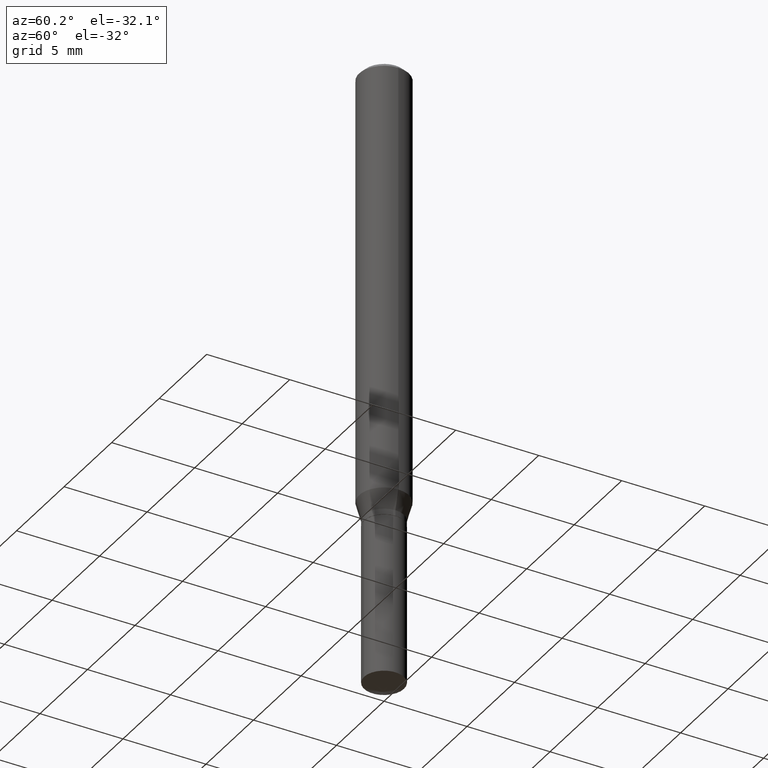
[diagram: clean part render]
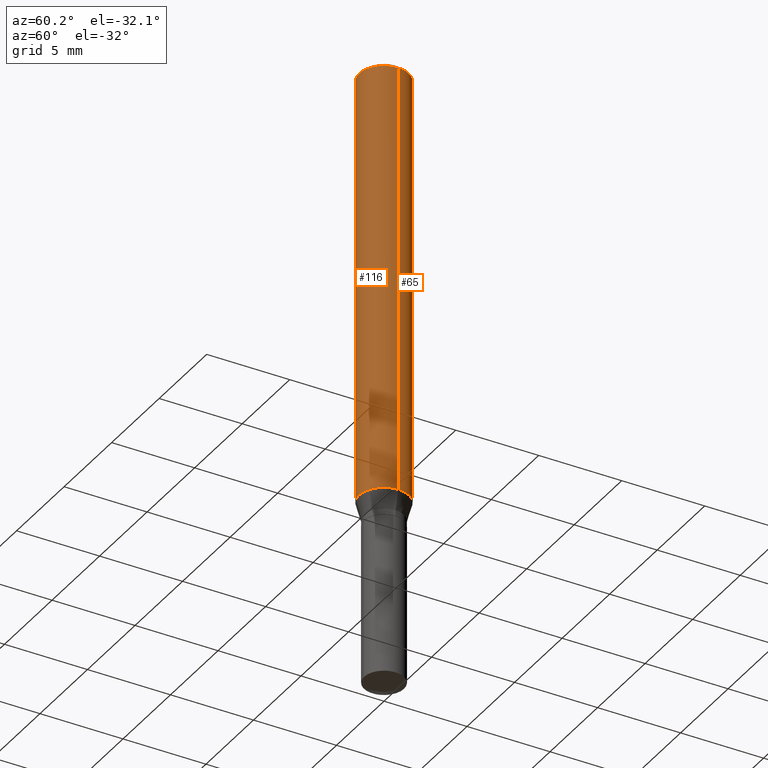
[diagram: same view with one multi-face feature highlighted, each face labeled with its STEP entity id]
A machine part, auxiliary view. The highlighted faces form ONE feature: a constant-radius fillet chain: 2 tangent blend faces with common blend radius 1.4999 mm. The faces share edges in the B-rep.
Their STEP definitions:
[1] entity #65 (Cylinder):
#14 = CARTESIAN_POINT ( 'NONE',  ( -0.05905000000000013016, -3.198513253033061898E-15, -1.036261800470686723 ) ) ;
#19 = DIRECTION ( 'NONE',  ( -2.445468806185136597E-29, 3.491481338843145583E-15, 1.000000000000000000 ) ) ;
#65 = ADVANCED_FACE ( 'NONE', ( #100 ), #180, .T. ) ;
#75 = CIRCLE ( 'NONE', #385, 0.05905000000000013016 ) ;
#100 = FACE_OUTER_BOUND ( 'NONE', #179, .T. ) ;
#125 = EDGE_CURVE ( 'NONE', #378, #214, #142, .T. ) ;
#136 = ORIENTED_EDGE ( 'NONE', *, *, #165, .T. ) ;
#142 = LINE ( 'NONE', #485, #210 ) ;
#144 = EDGE_CURVE ( 'NONE', #416, #440, #473, .T. ) ;
#154 = EDGE_CURVE ( 'NONE', #214, #440, #193, .T. ) ;
#165 = EDGE_CURVE ( 'NONE', #378, #416, #75, .T. ) ;
#173 = ORIENTED_EDGE ( 'NONE', *, *, #125, .F. ) ;
#179 = EDGE_LOOP ( 'NONE', ( #136, #227, #483, #173 ) ) ;
#180 = CYLINDRICAL_SURFACE ( 'NONE', #438, 0.05905000000000006771 ) ;
#193 = CIRCLE ( 'NONE', #339, 0.05904999999999999832 ) ;
#210 = VECTOR ( 'NONE', #367, 39.37007874015748143 ) ;
#214 = VERTEX_POINT ( 'NONE', #422 ) ;
#219 = CARTESIAN_POINT ( 'NONE',  ( -0.05905000000000006771, 4.195754854663396409E-16, -2.904631170795525045E-30 ) ) ;
#227 = ORIENTED_EDGE ( 'NONE', *, *, #144, .T. ) ;
#255 = DIRECTION ( 'NONE',  ( 1.000000000000000000, -6.982962677686266711E-15, 4.876176775795936353E-29 ) ) ;
#263 = DIRECTION ( 'NONE',  ( -2.445468806185136597E-29, 3.491481338843145583E-15, 1.000000000000000000 ) ) ;
#264 = DIRECTION ( 'NONE',  ( 1.000000000000000000, -6.982962677686266711E-15, 0.000000000000000000 ) ) ;
#289 = CARTESIAN_POINT ( 'NONE',  ( -0.05904999999999999832, -1.410086081089229475E-15, -0.01181000000000007565 ) ) ;
#339 = AXIS2_PLACEMENT_3D ( 'NONE', #369, #19, #264 ) ;
#353 = DIRECTION ( 'NONE',  ( -2.445468806185136597E-29, 3.491481338843145583E-15, 1.000000000000000000 ) ) ;
#367 = DIRECTION ( 'NONE',  ( -2.445468806185136877E-29, 3.491481338843145188E-15, 1.000000000000000000 ) ) ;
#369 = CARTESIAN_POINT ( 'NONE',  ( 2.888098660104664642E-31, -4.123439461173780879E-17, -0.01181000000000007565 ) ) ;
#378 = VERTEX_POINT ( 'NONE', #463 ) ;
#385 = AXIS2_PLACEMENT_3D ( 'NONE', #457, #353, #454 ) ;
#401 = VECTOR ( 'NONE', #448, 39.37007874015748143 ) ;
#416 = VERTEX_POINT ( 'NONE', #14 ) ;
#422 = CARTESIAN_POINT ( 'NONE',  ( 0.05904999999999999832, -4.535783407291118600E-16, -0.01181000000000007565 ) ) ;
#438 = AXIS2_PLACEMENT_3D ( 'NONE', #478, #263, #255 ) ;
#440 = VERTEX_POINT ( 'NONE', #289 ) ;
#448 = DIRECTION ( 'NONE',  ( -2.445468806185136877E-29, 3.491481338843145188E-15, 1.000000000000000000 ) ) ;
#454 = DIRECTION ( 'NONE',  ( 1.000000000000000000, -6.982962677686265133E-15, 0.000000000000000000 ) ) ;
#457 = CARTESIAN_POINT ( 'NONE',  ( 2.534145908092310761E-29, -3.618088738499401785E-15, -1.036261800470686723 ) ) ;
#463 = CARTESIAN_POINT ( 'NONE',  ( 0.05905000000000013016, -4.030432684616777494E-15, -1.036261800470686723 ) ) ;
#473 = LINE ( 'NONE', #219, #401 ) ;
#478 = CARTESIAN_POINT ( 'NONE',  ( 0.000000000000000000, 0.000000000000000000, 0.000000000000000000 ) ) ;
#483 = ORIENTED_EDGE ( 'NONE', *, *, #154, .F. ) ;
#485 = CARTESIAN_POINT ( 'NONE',  ( 0.05905000000000006771, -4.123439461173745257E-16, 2.879382386107503723E-30 ) ) ;
[2] entity #116 (Cylinder):
#14 = CARTESIAN_POINT ( 'NONE',  ( -0.05905000000000013016, -3.198513253033061898E-15, -1.036261800470686723 ) ) ;
#37 = DIRECTION ( 'NONE',  ( 1.000000000000000000, -6.982962677686265133E-15, 0.000000000000000000 ) ) ;
#102 = ORIENTED_EDGE ( 'NONE', *, *, #144, .F. ) ;
#103 = DIRECTION ( 'NONE',  ( -2.445468806185136597E-29, 3.491481338843145583E-15, 1.000000000000000000 ) ) ;
#106 = ORIENTED_EDGE ( 'NONE', *, *, #217, .T. ) ;
#116 = ADVANCED_FACE ( 'NONE', ( #403 ), #182, .T. ) ;
#122 = CIRCLE ( 'NONE', #229, 0.05905000000000013016 ) ;
#125 = EDGE_CURVE ( 'NONE', #378, #214, #142, .T. ) ;
#142 = LINE ( 'NONE', #485, #210 ) ;
#144 = EDGE_CURVE ( 'NONE', #416, #440, #473, .T. ) ;
#146 = CARTESIAN_POINT ( 'NONE',  ( 0.000000000000000000, 0.000000000000000000, 0.000000000000000000 ) ) ;
#152 = CIRCLE ( 'NONE', #221, 0.05904999999999999832 ) ;
#156 = CARTESIAN_POINT ( 'NONE',  ( 2.534145908092310761E-29, -3.618088738499401785E-15, -1.036261800470686723 ) ) ;
#182 = CYLINDRICAL_SURFACE ( 'NONE', #261, 0.05905000000000006771 ) ;
#210 = VECTOR ( 'NONE', #367, 39.37007874015748143 ) ;
#214 = VERTEX_POINT ( 'NONE', #422 ) ;
#217 = EDGE_CURVE ( 'NONE', #416, #378, #122, .T. ) ;
#219 = CARTESIAN_POINT ( 'NONE',  ( -0.05905000000000006771, 4.195754854663396409E-16, -2.904631170795525045E-30 ) ) ;
#221 = AXIS2_PLACEMENT_3D ( 'NONE', #396, #398, #322 ) ;
#229 = AXIS2_PLACEMENT_3D ( 'NONE', #156, #103, #37 ) ;
#261 = AXIS2_PLACEMENT_3D ( 'NONE', #146, #338, #480 ) ;
#272 = EDGE_LOOP ( 'NONE', ( #102, #106, #374, #294 ) ) ;
#289 = CARTESIAN_POINT ( 'NONE',  ( -0.05904999999999999832, -1.410086081089229475E-15, -0.01181000000000007565 ) ) ;
#290 = EDGE_CURVE ( 'NONE', #440, #214, #152, .T. ) ;
#294 = ORIENTED_EDGE ( 'NONE', *, *, #290, .F. ) ;
#322 = DIRECTION ( 'NONE',  ( 1.000000000000000000, -6.982962677686266711E-15, 0.000000000000000000 ) ) ;
#338 = DIRECTION ( 'NONE',  ( -2.445468806185136597E-29, 3.491481338843145583E-15, 1.000000000000000000 ) ) ;
#367 = DIRECTION ( 'NONE',  ( -2.445468806185136877E-29, 3.491481338843145188E-15, 1.000000000000000000 ) ) ;
#374 = ORIENTED_EDGE ( 'NONE', *, *, #125, .T. ) ;
#378 = VERTEX_POINT ( 'NONE', #463 ) ;
#396 = CARTESIAN_POINT ( 'NONE',  ( 2.888098660104664642E-31, -4.123439461173780879E-17, -0.01181000000000007565 ) ) ;
#398 = DIRECTION ( 'NONE',  ( -2.445468806185136597E-29, 3.491481338843145583E-15, 1.000000000000000000 ) ) ;
#401 = VECTOR ( 'NONE', #448, 39.37007874015748143 ) ;
#403 = FACE_OUTER_BOUND ( 'NONE', #272, .T. ) ;
#416 = VERTEX_POINT ( 'NONE', #14 ) ;
#422 = CARTESIAN_POINT ( 'NONE',  ( 0.05904999999999999832, -4.535783407291118600E-16, -0.01181000000000007565 ) ) ;
#440 = VERTEX_POINT ( 'NONE', #289 ) ;
#448 = DIRECTION ( 'NONE',  ( -2.445468806185136877E-29, 3.491481338843145188E-15, 1.000000000000000000 ) ) ;
#463 = CARTESIAN_POINT ( 'NONE',  ( 0.05905000000000013016, -4.030432684616777494E-15, -1.036261800470686723 ) ) ;
#473 = LINE ( 'NONE', #219, #401 ) ;
#480 = DIRECTION ( 'NONE',  ( 1.000000000000000000, -6.982962677686266711E-15, 4.876176775795936353E-29 ) ) ;
#485 = CARTESIAN_POINT ( 'NONE',  ( 0.05905000000000006771, -4.123439461173745257E-16, 2.879382386107503723E-30 ) ) ;